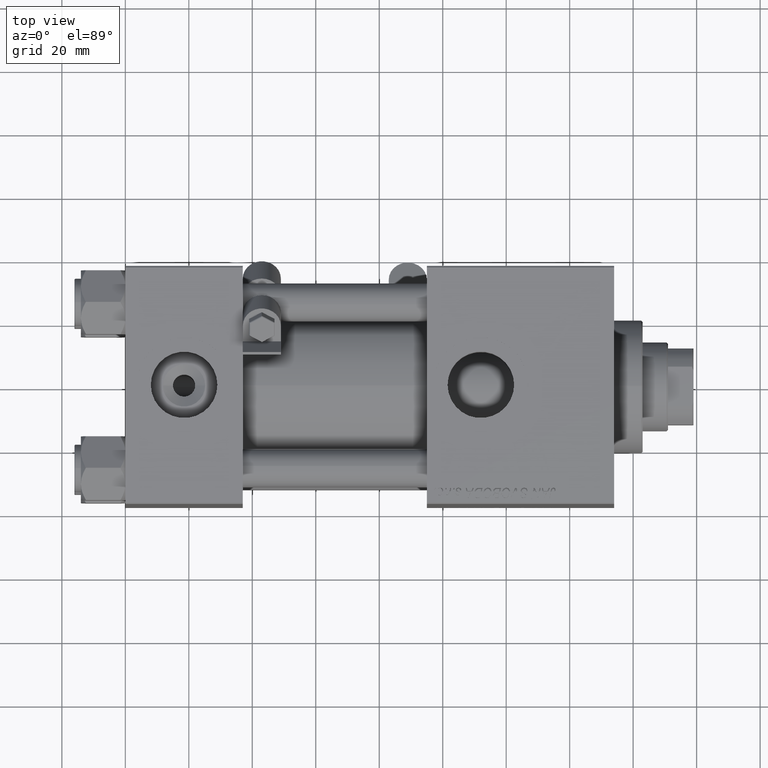
[diagram: clean part render]
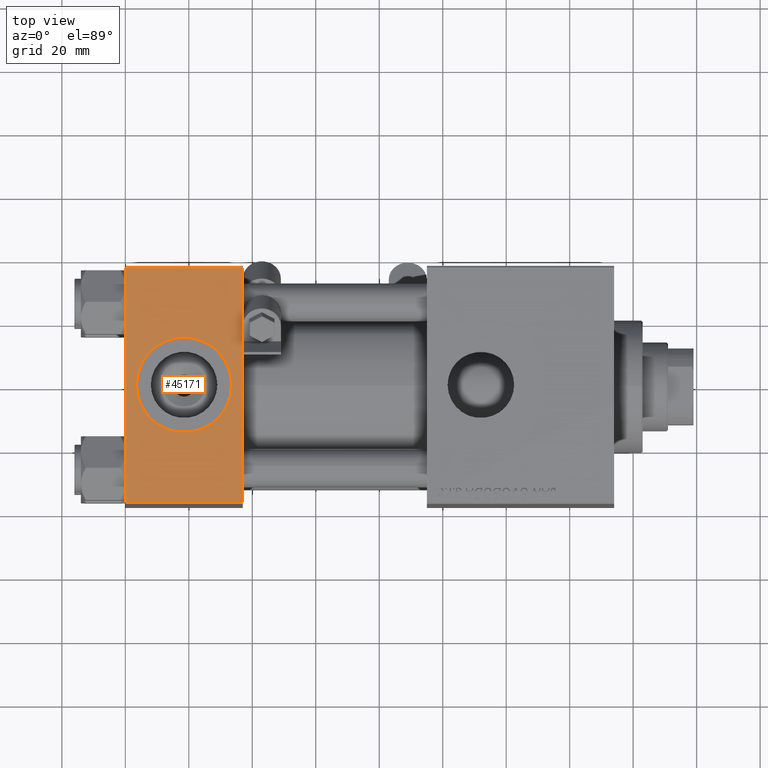
[diagram: same view with one face highlighted and labeled with its STEP entity id]
A machine part, top view. The second image highlights one B-rep face of the part: STEP entity #45171.
In plain terms, the highlighted planar face has unit normal (0, 0, -1).
Its self-contained STEP definition (entity closure, byte-faithful):
#352 = VERTEX_POINT ( 'NONE', #16147 ) ;
#1416 = PLANE ( 'NONE',  #46134 ) ;
#1900 = EDGE_CURVE ( 'NONE', #16273, #352, #23334, .T. ) ;
#2075 = DIRECTION ( 'NONE',  ( 0.000000000000000000, 0.000000000000000000, 1.000000000000000000 ) ) ;
#2085 = EDGE_CURVE ( 'NONE', #15807, #43240, #43994, .T. ) ;
#3228 = ORIENTED_EDGE ( 'NONE', *, *, #1900, .F. ) ;
#3843 = CARTESIAN_POINT ( 'NONE',  ( 0.000000000000000000, 36.99999999999999289, 37.50000000000000000 ) ) ;
#4530 = CIRCLE ( 'NONE', #47564, 15.00000000000000355 ) ;
#4542 = CARTESIAN_POINT ( 'NONE',  ( 37.00000000000000000, 37.49999999999999289, 37.50000000000000000 ) ) ;
#7604 = AXIS2_PLACEMENT_3D ( 'NONE', #33427, #2075, #13737 ) ;
#7779 = VECTOR ( 'NONE', #22744, 1000.000000000000000 ) ;
#7958 = CARTESIAN_POINT ( 'NONE',  ( 18.50000000000000000, -5.204170427930421283E-15, 37.50000000000000000 ) ) ;
#11393 = EDGE_CURVE ( 'NONE', #47045, #15807, #46309, .T. ) ;
#11508 = EDGE_CURVE ( 'NONE', #352, #16273, #4530, .T. ) ;
#11557 = VECTOR ( 'NONE', #39076, 1000.000000000000000 ) ;
#12571 = DIRECTION ( 'NONE',  ( 0.000000000000000000, 9.251858538542971581E-17, -1.000000000000000000 ) ) ;
#13737 = DIRECTION ( 'NONE',  ( 1.000000000000000000, 0.000000000000000000, 0.000000000000000000 ) ) ;
#13857 = VERTEX_POINT ( 'NONE', #49077 ) ;
#15807 = VERTEX_POINT ( 'NONE', #22102 ) ;
#16147 = CARTESIAN_POINT ( 'NONE',  ( 3.499999999999997780, -3.367200229209391300E-15, 37.50000000000000000 ) ) ;
#16273 = VERTEX_POINT ( 'NONE', #32045 ) ;
#18364 = VECTOR ( 'NONE', #44508, 1000.000000000000000 ) ;
#18574 = EDGE_CURVE ( 'NONE', #13857, #43240, #47873, .T. ) ;
#19643 = ORIENTED_EDGE ( 'NONE', *, *, #2085, .T. ) ;
#20595 = DIRECTION ( 'NONE',  ( 0.000000000000000000, 1.000000000000000000, 9.251858538542971581E-17 ) ) ;
#20777 = ORIENTED_EDGE ( 'NONE', *, *, #11508, .F. ) ;
#22102 = CARTESIAN_POINT ( 'NONE',  ( 0.000000000000000000, -37.00000000000000711, 37.49999999999999289 ) ) ;
#22277 = EDGE_LOOP ( 'NONE', ( #3228, #20777 ) ) ;
#22744 = DIRECTION ( 'NONE',  ( 0.000000000000000000, -1.000000000000000000, -9.251858538542971581E-17 ) ) ;
#23282 = LINE ( 'NONE', #3843, #11557 ) ;
#23334 = CIRCLE ( 'NONE', #7604, 15.00000000000000355 ) ;
#24325 = CARTESIAN_POINT ( 'NONE',  ( 37.00000000000000000, -37.00000000000000711, 37.49999999999999289 ) ) ;
#25073 = DIRECTION ( 'NONE',  ( 0.000000000000000000, -1.000000000000000000, -9.251858538542971581E-17 ) ) ;
#25314 = VECTOR ( 'NONE', #25073, 1000.000000000000000 ) ;
#28186 = CARTESIAN_POINT ( 'NONE',  ( 37.00000000000000000, 37.49999999999999289, 37.50000000000000000 ) ) ;
#29296 = ORIENTED_EDGE ( 'NONE', *, *, #18574, .F. ) ;
#31529 = DIRECTION ( 'NONE',  ( 0.000000000000000000, 0.000000000000000000, 1.000000000000000000 ) ) ;
#32045 = CARTESIAN_POINT ( 'NONE',  ( 33.50000000000000000, -5.204170427930421283E-15, 37.50000000000000000 ) ) ;
#32774 = CARTESIAN_POINT ( 'NONE',  ( 0.000000000000000000, 36.99999999999999289, 37.50000000000000000 ) ) ;
#33427 = CARTESIAN_POINT ( 'NONE',  ( 18.50000000000000000, -5.204170427930421283E-15, 37.50000000000000000 ) ) ;
#34319 = ORIENTED_EDGE ( 'NONE', *, *, #49468, .T. ) ;
#36883 = CARTESIAN_POINT ( 'NONE',  ( 37.00000000000000000, -37.00000000000000711, 37.49999999999999289 ) ) ;
#39076 = DIRECTION ( 'NONE',  ( -1.000000000000000000, 0.000000000000000000, 0.000000000000000000 ) ) ;
#39560 = DIRECTION ( 'NONE',  ( 1.000000000000000000, 0.000000000000000000, 0.000000000000000000 ) ) ;
#40024 = FACE_BOUND ( 'NONE', #22277, .T. ) ;
#40477 = ORIENTED_EDGE ( 'NONE', *, *, #11393, .T. ) ;
#42415 = CARTESIAN_POINT ( 'NONE',  ( 0.000000000000000000, 37.49999999999999289, 37.50000000000000000 ) ) ;
#43240 = VERTEX_POINT ( 'NONE', #36883 ) ;
#43994 = LINE ( 'NONE', #24325, #18364 ) ;
#44508 = DIRECTION ( 'NONE',  ( 1.000000000000000000, 0.000000000000000000, 0.000000000000000000 ) ) ;
#45171 = ADVANCED_FACE ( 'NONE', ( #40024, #48071 ), #1416, .F. ) ;
#45707 = EDGE_LOOP ( 'NONE', ( #40477, #19643, #29296, #34319 ) ) ;
#46134 = AXIS2_PLACEMENT_3D ( 'NONE', #4542, #12571, #20595 ) ;
#46309 = LINE ( 'NONE', #42415, #7779 ) ;
#47045 = VERTEX_POINT ( 'NONE', #32774 ) ;
#47564 = AXIS2_PLACEMENT_3D ( 'NONE', #7958, #31529, #39560 ) ;
#47873 = LINE ( 'NONE', #28186, #25314 ) ;
#48071 = FACE_OUTER_BOUND ( 'NONE', #45707, .T. ) ;
#49077 = CARTESIAN_POINT ( 'NONE',  ( 37.00000000000000000, 36.99999999999999289, 37.50000000000000000 ) ) ;
#49468 = EDGE_CURVE ( 'NONE', #13857, #47045, #23282, .T. ) ;